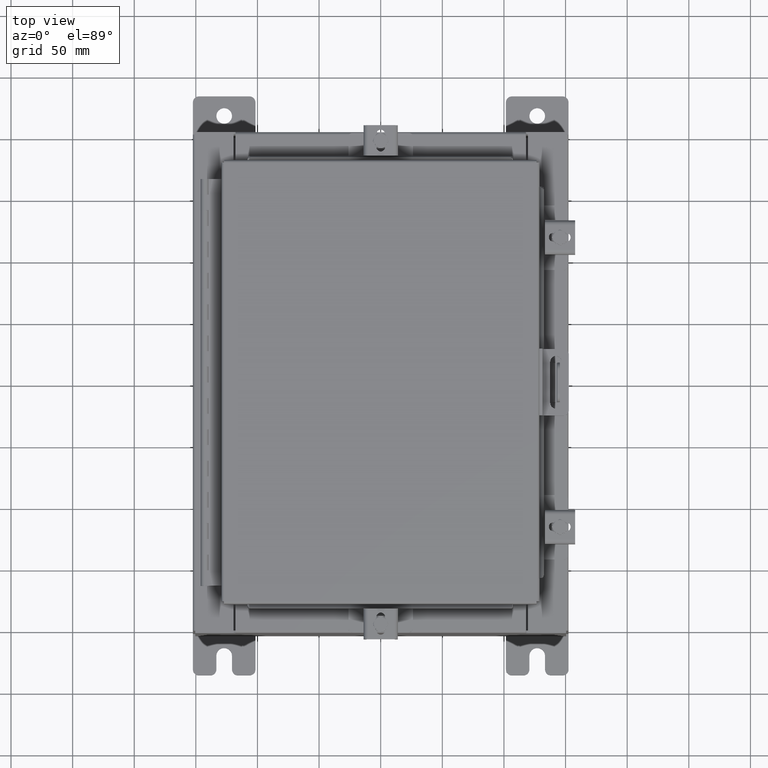
[diagram: clean part render]
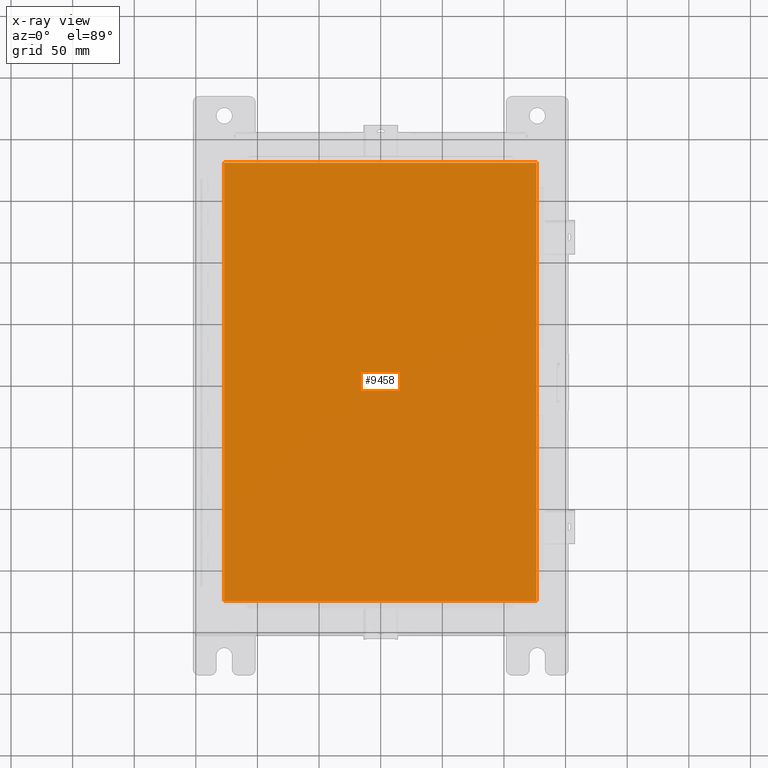
[diagram: x-ray — body ghosted, one internal face saturated and labeled with its STEP entity id]
A machine part, top view, then the same camera in x-ray: the body is ghosted and one INTERNAL B-rep face — a face not visible from any outside direction — is saturated and labeled: STEP entity #9458.
In plain terms, the highlighted planar face has unit normal (0, 0, -1).
Its self-contained STEP definition (entity closure, byte-faithful):
#25 = PLANE ( 'NONE',  #19670 ) ;
#131 = DIRECTION ( 'NONE',  ( -1.000000000000000000, 0.0000000000000000000, -0.0000000000000000000 ) ) ;
#339 = CARTESIAN_POINT ( 'NONE',  ( -4.990299999999999500, -7.006300000000000400, -0.07470000000000000300 ) ) ;
#2547 = VECTOR ( 'NONE', #24246, 39.37007874015748100 ) ;
#2706 = VECTOR ( 'NONE', #3277, 39.37007874015748100 ) ;
#2935 = DIRECTION ( 'NONE',  ( 1.000000000000000000, -0.0000000000000000000, -0.0000000000000000000 ) ) ;
#2995 = CARTESIAN_POINT ( 'NONE',  ( 4.990299999999998600, -7.006300000000000400, -0.07469999999999965600 ) ) ;
#3277 = DIRECTION ( 'NONE',  ( 0.0000000000000000000, -1.000000000000000000, 0.0000000000000000000 ) ) ;
#6706 = VECTOR ( 'NONE', #2935, 39.37007874015748100 ) ;
#7112 = DIRECTION ( 'NONE',  ( 0.0000000000000000000, 1.000000000000000000, 0.0000000000000000000 ) ) ;
#7446 = EDGE_CURVE ( 'NONE', #14564, #21771, #13398, .T. ) ;
#7881 = LINE ( 'NONE', #10175, #2547 ) ;
#8264 = EDGE_CURVE ( 'NONE', #15968, #17085, #13587, .T. ) ;
#9458 = ADVANCED_FACE ( 'NONE', ( #25156 ), #25, .T. ) ;
#9533 = ORIENTED_EDGE ( 'NONE', *, *, #18433, .F. ) ;
#10175 = CARTESIAN_POINT ( 'NONE',  ( 4.990299999999998600, 7.006300000000000400, -0.07470000000000019700 ) ) ;
#10497 = CARTESIAN_POINT ( 'NONE',  ( 4.990299999999997700, 7.006300000000000400, -0.07470000000000000300 ) ) ;
#11192 = CARTESIAN_POINT ( 'NONE',  ( -4.990300000000000400, 7.006300000000000400, -0.07470000000000019700 ) ) ;
#12184 = DIRECTION ( 'NONE',  ( 0.0000000000000000000, 0.0000000000000000000, -1.000000000000000000 ) ) ;
#12947 = VECTOR ( 'NONE', #7112, 39.37007874015748100 ) ;
#13398 = LINE ( 'NONE', #11192, #2706 ) ;
#13587 = LINE ( 'NONE', #2995, #12947 ) ;
#13602 = ORIENTED_EDGE ( 'NONE', *, *, #19901, .F. ) ;
#14564 = VERTEX_POINT ( 'NONE', #23422 ) ;
#15968 = VERTEX_POINT ( 'NONE', #24800 ) ;
#16120 = CARTESIAN_POINT ( 'NONE',  ( 0.0000000000000000000, 0.0000000000000000000, -0.07470000000000000300 ) ) ;
#17085 = VERTEX_POINT ( 'NONE', #10497 ) ;
#17380 = LINE ( 'NONE', #18917, #6706 ) ;
#18433 = EDGE_CURVE ( 'NONE', #21771, #15968, #17380, .T. ) ;
#18524 = ORIENTED_EDGE ( 'NONE', *, *, #7446, .F. ) ;
#18917 = CARTESIAN_POINT ( 'NONE',  ( -4.990300000000000400, -7.006300000000000400, -0.07470000000000019700 ) ) ;
#19670 = AXIS2_PLACEMENT_3D ( 'NONE', #16120, #12184, #131 ) ;
#19901 = EDGE_CURVE ( 'NONE', #17085, #14564, #7881, .T. ) ;
#20867 = EDGE_LOOP ( 'NONE', ( #24454, #9533, #18524, #13602 ) ) ;
#21771 = VERTEX_POINT ( 'NONE', #339 ) ;
#23422 = CARTESIAN_POINT ( 'NONE',  ( -4.990300000000000400, 7.006299999999998600, -0.07470000000000000300 ) ) ;
#24246 = DIRECTION ( 'NONE',  ( -1.000000000000000000, -0.0000000000000000000, -0.0000000000000000000 ) ) ;
#24454 = ORIENTED_EDGE ( 'NONE', *, *, #8264, .F. ) ;
#24800 = CARTESIAN_POINT ( 'NONE',  ( 4.990299999999998600, -7.006300000000000400, -0.07470000000000000300 ) ) ;
#25156 = FACE_OUTER_BOUND ( 'NONE', #20867, .T. ) ;